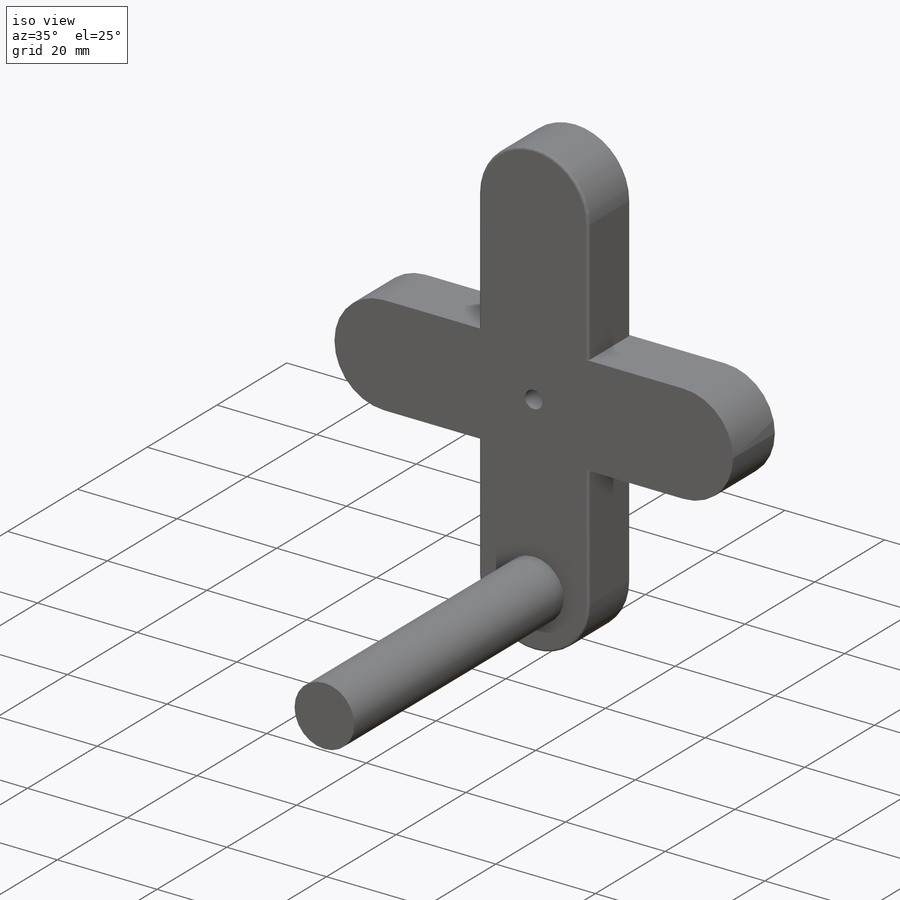
[diagram: iso view]
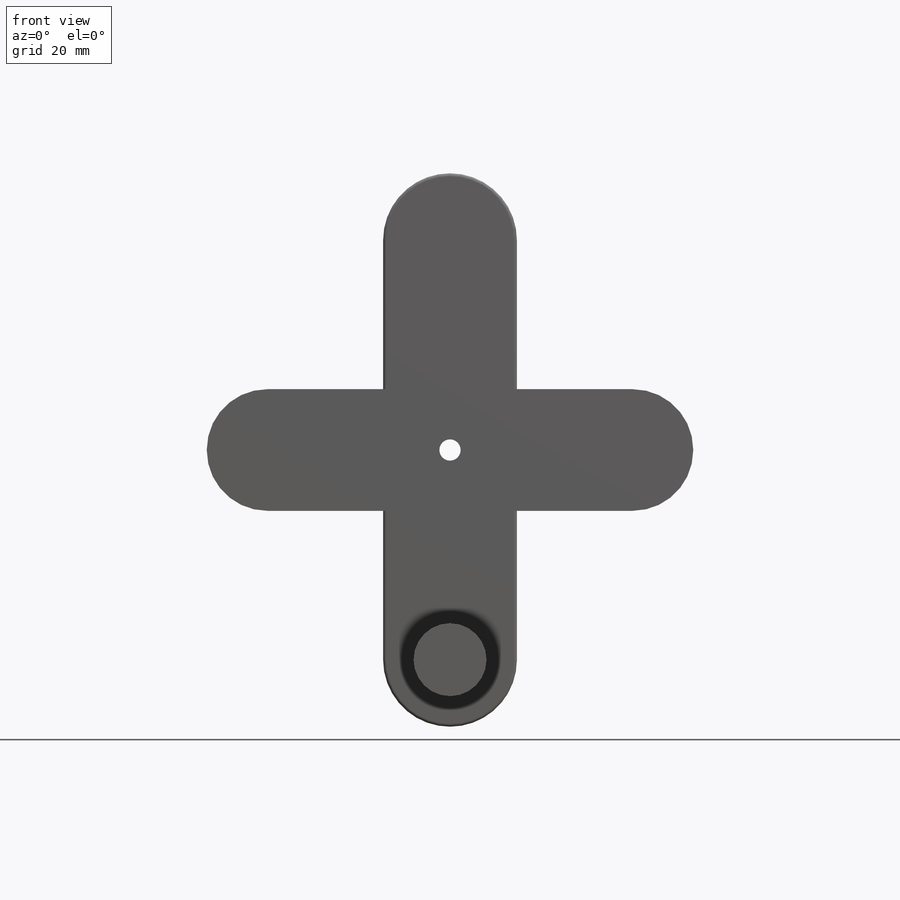
[diagram: front view]
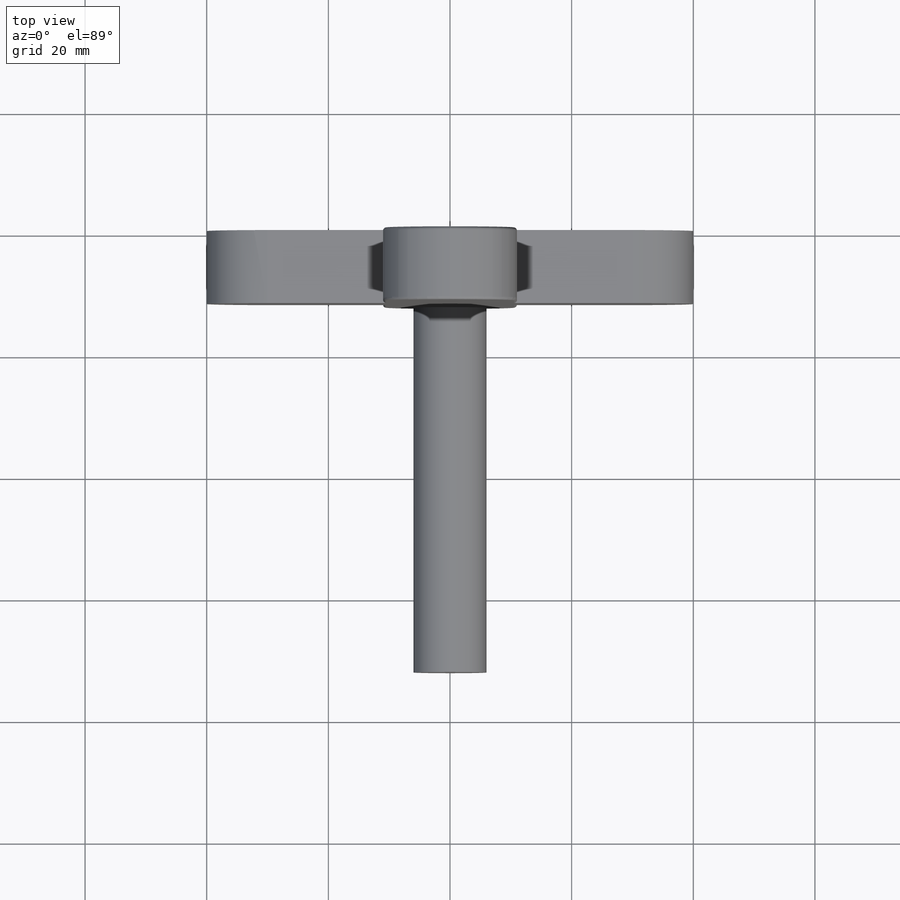
[diagram: top view]
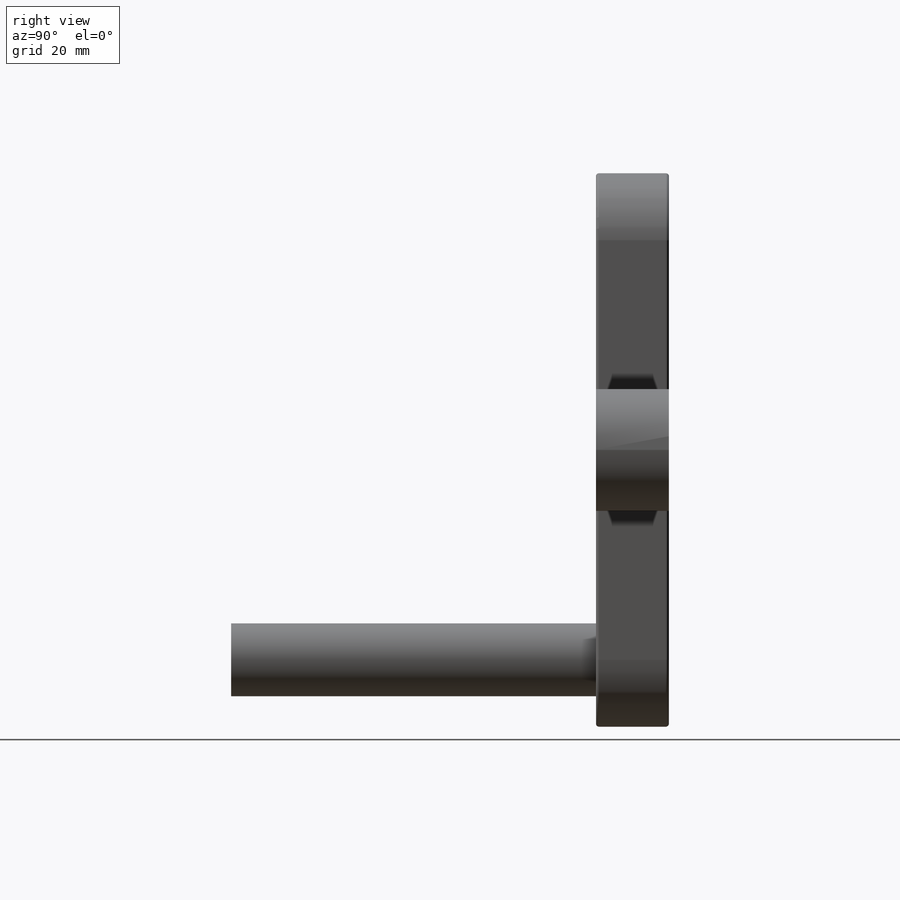
[diagram: right view]
SOLIDWORKS PART (.sldprt)
format: sldprt  version: not decoded by parser v0  size: 312,832 bytes
history: native  units: mm
features: sketch x7, extrude x4, fillet x2, cut_extrude x2, material x1 (+13 scaffold rows collapsed)
feature tree (29):
  scaffold x13  (default folders/planes/origin — collapsed)
  material  "Material <not specified>"
  sketch  "Sketch2"  dims[c1.D1=80.0mm c1.D2=12.0mm c2.D1=22.0mm]
  extrude  "Boss-Extrude1"  Depth=12mm
  sketch  "Sketch3"  dims[c1.D1=0.3mm c1.D2=0.3mm c2.D1=4.0mm c2.D2=2.5mm c2.D3=7.0]
  sketch  "Sketch4"  dims[D1=6.0mm]
  extrude  "Boss-Extrude2"  Depth=12mm
  sketch  "Sketch5"  dims[D1=~1.96792mm]
  extrude  "Boss-Extrude3"  Depth=60mm
  fillet  "Fillet1"  Radius=11mm
  fillet  "Fillet2"  Radius=0.5mm
  sketch  "Sketch7"  dims[D1=20.0mm D2=80.0mm]
  extrude  "Boss-Extrude4"  Depth=12mm
  sketch  "Sketch8"  dims[D1=~37.758254mm]
  cut_extrude  "Cut-Extrude2"  Depth=12mm
  sketch  "Sketch9"  dims[c1.D1=12.5mm c1.D2=12.5mm c2.D1=14.0mm]
  cut_extrude  "Cut-Extrude4"  Depth=5mm
decode coverage: 15 of 15 modeling features carry decoded parameters
note: ~ marks probable driven/reference dimensions
note: suppression state not decoded; provenance and decode notes live in map.json
